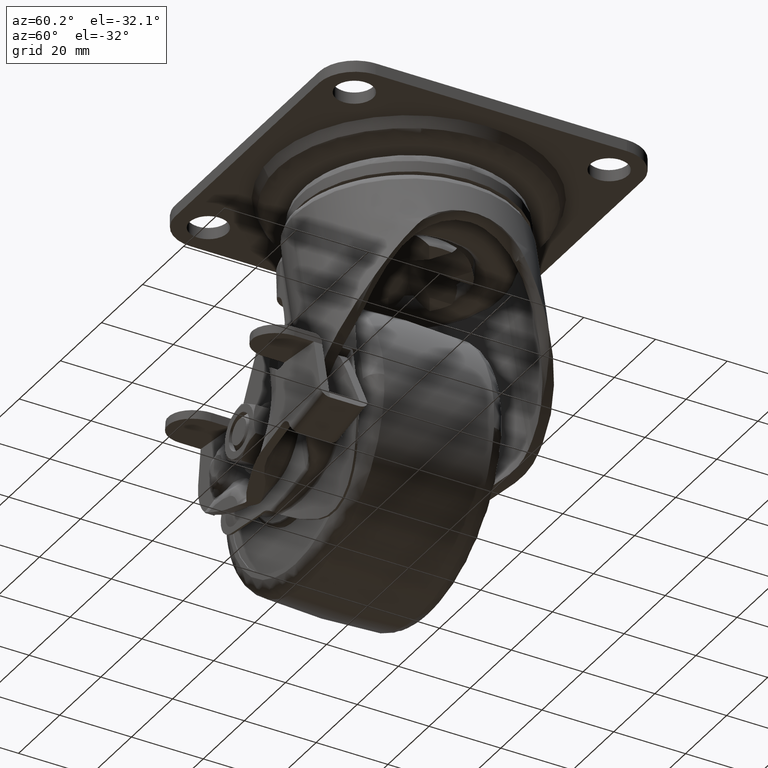
[diagram: clean part render]
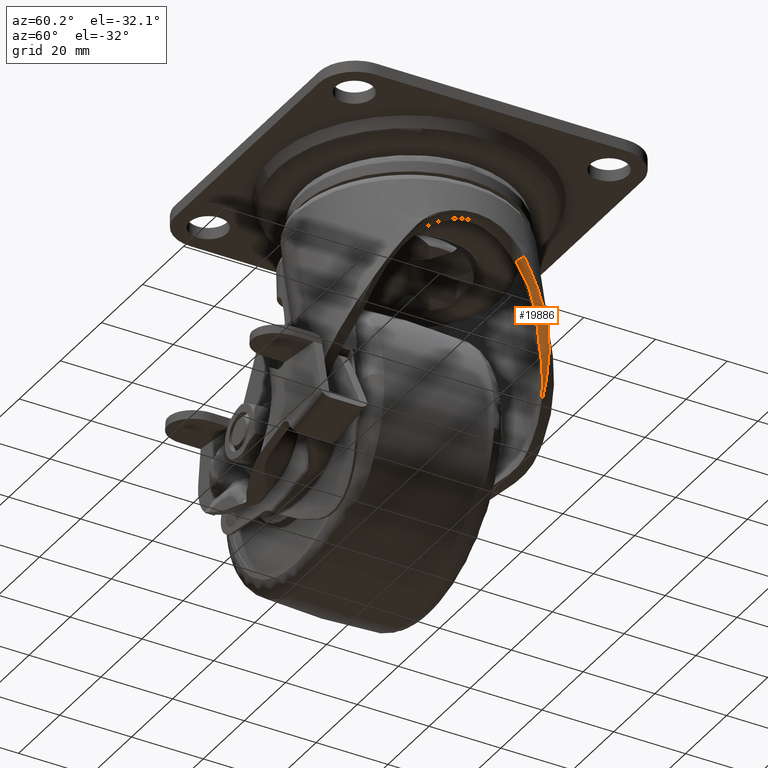
[diagram: same view with one face highlighted and labeled with its STEP entity id]
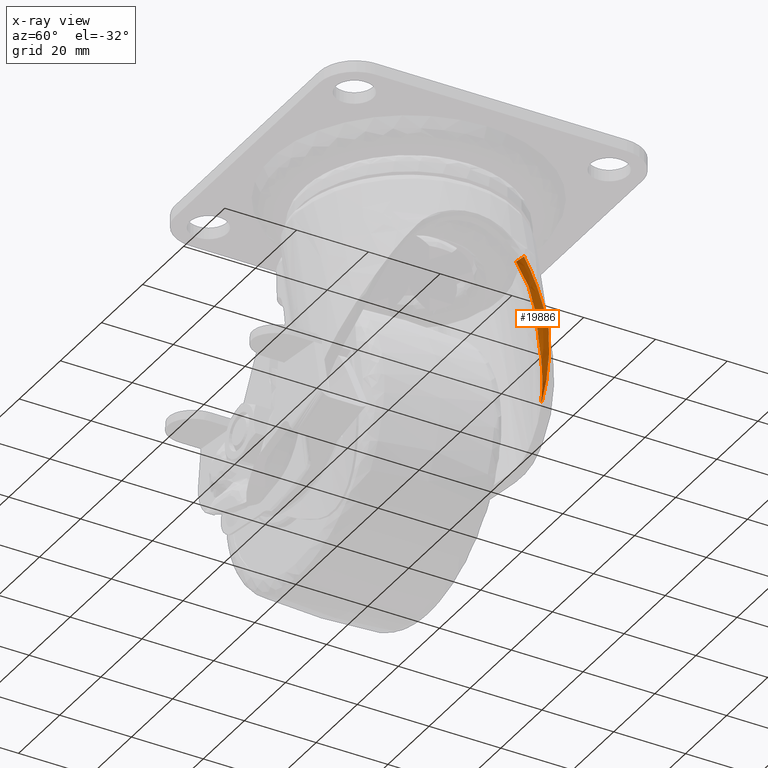
[diagram: x-ray of the same camera — body ghosted, the highlighted face saturated]
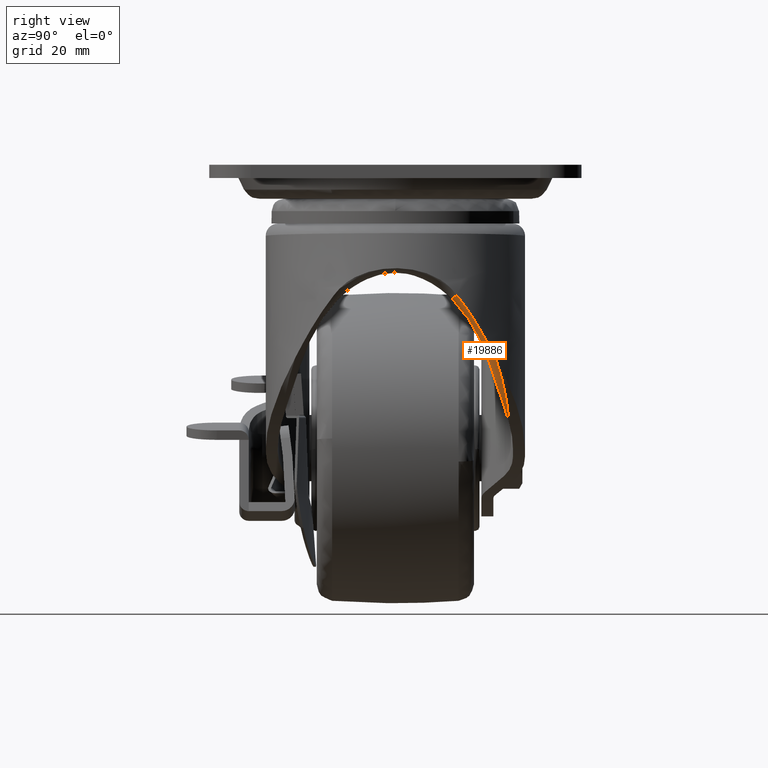
[diagram: same view with one face highlighted and labeled with its STEP entity id]
A machine part, auxiliary view. The second image highlights one B-rep face of the part: STEP entity #19886.
The next image is the same camera in x-ray: the body ghosted, the highlighted face saturated — about 0% of this face is hidden behind the body in this view.
A second angle (right view) of the same face is appended — the face is thin or edge-on in the first view.
In plain terms, the highlighted face is a freeform B-spline surface patch.
Its self-contained STEP definition (entity closure, byte-faithful):
#17883=CARTESIAN_POINT('',(30.167933935313851,14.834970166938099,-31.474647502570608));
#17884=VERTEX_POINT('',#17883);
#17892=CARTESIAN_POINT('',(25.820157492246000,24.150369751836951,-46.517935497095799));
#17893=VERTEX_POINT('',#17892);
#17894=CARTESIAN_POINT('',(30.167933935313851,14.834970166938099,-31.474647502570608));
#17895=CARTESIAN_POINT('',(30.109935720879569,15.065543439244040,-31.773286887646101));
#17896=CARTESIAN_POINT('',(30.049137989632861,15.294500020893720,-32.072506787586633));
#17897=CARTESIAN_POINT('',(29.922956261496200,15.747969803356280,-32.673221268123037));
#17898=CARTESIAN_POINT('',(29.857563633526951,15.972498480744830,-32.974702549387892));
#17899=CARTESIAN_POINT('',(29.722776302398671,16.416592574578171,-33.580450834324857));
#17900=CARTESIAN_POINT('',(29.653377981312410,16.636164706817748,-33.884712094814169));
#17901=CARTESIAN_POINT('',(29.510936808854950,17.070150565552421,-34.496242376435447));
#17902=CARTESIAN_POINT('',(29.437869553479239,17.284627551738009,-34.803599327372467));
#17903=CARTESIAN_POINT('',(29.213841566824410,17.919379145085468,-35.728867278242468));
#17904=CARTESIAN_POINT('',(29.058025008683501,18.331210771652671,-36.350384063865363));
#17905=CARTESIAN_POINT('',(28.733763504414661,19.133878161103759,-37.601868091195229));
#17906=CARTESIAN_POINT('',(28.565313283105869,19.524735844707269,-38.231820827189161));
#17907=CARTESIAN_POINT('',(28.214376040451839,20.288150321827288,-39.498159463282413));
#17908=CARTESIAN_POINT('',(28.031888983760378,20.660719576304029,-40.134538029820789));
#17909=CARTESIAN_POINT('',(27.649843858883550,21.390720674211650,-41.410935201796377));
#17910=CARTESIAN_POINT('',(27.450286684259630,21.748163163549780,-42.050947826260042));
#17911=CARTESIAN_POINT('',(27.029419476084179,22.451215589885450,-43.331229668439072));
#17912=CARTESIAN_POINT('',(26.808114824406100,22.796833680288358,-43.971495751663781));
#17913=CARTESIAN_POINT('',(26.337350602661150,23.479394263586880,-45.248458399500592));
#17914=CARTESIAN_POINT('',(26.087914594759390,23.816337175657090,-45.885161971596943));
#17915=CARTESIAN_POINT('',(25.820157492246199,24.150369751836649,-46.517935497095500));
#17916=B_SPLINE_CURVE_WITH_KNOTS('',3,(#17894,#17895,#17896,#17897,#17898,#17899,#17900,#17901,#17902,#17903,#17904,#17905,#17906,#17907,#17908,#17909,#17910,#17911,#17912,#17913,#17914,#17915),.UNSPECIFIED.,.F.,.U.,(4,2,2,2,2,2,2,2,2,2,4),(0.0,0.062500000000000,0.125000000000001,0.187500000000001,0.250000000000001,0.375000000000001,0.500000000000001,0.625000000000001,0.750000000000000,0.875000000000000,1.0),.UNSPECIFIED.);
#17917=EDGE_CURVE('',#17884,#17893,#17916,.T.);
#19061=CARTESIAN_POINT('',(16.365325057381000,27.521977061377449,-62.353091716818412));
#19062=VERTEX_POINT('',#19061);
#19063=CARTESIAN_POINT('',(25.820157492246000,24.150369751836951,-46.517935497095799));
#19064=CARTESIAN_POINT('',(25.527678217133150,24.396649012538951,-47.209133378725603));
#19065=CARTESIAN_POINT('',(25.221973735292220,24.627104798513269,-47.899248050485077));
#19066=CARTESIAN_POINT('',(24.743225636630459,24.950970349932550,-48.932024780131421));
#19067=CARTESIAN_POINT('',(24.580277328097811,25.055285492860779,-49.275885470043967));
#19068=CARTESIAN_POINT('',(24.247585506495419,25.256915694036870,-49.962692188735652));
#19069=CARTESIAN_POINT('',(24.077713813352990,25.354298508793860,-50.305889379500762));
#19070=CARTESIAN_POINT('',(23.212899721333841,25.823449999040879,-52.015964697901403));
#19071=CARTESIAN_POINT('',(22.472669309514931,26.141768702911300,-53.363247217262270));
#19072=CARTESIAN_POINT('',(20.895322834203242,26.683410727352239,-56.012764093331221));
#19073=CARTESIAN_POINT('',(20.058210107283589,26.906655335867889,-57.315014712439464));
#19074=CARTESIAN_POINT('',(18.285911188052779,27.272236565933071,-59.871178693821612));
#19075=CARTESIAN_POINT('',(17.350729914750360,27.414525933715900,-61.125103687843662));
#19076=CARTESIAN_POINT('',(16.365325057381000,27.521977061377449,-62.353091716818412));
#19077=B_SPLINE_CURVE_WITH_KNOTS('',3,(#19063,#19064,#19065,#19066,#19067,#19068,#19069,#19070,#19071,#19072,#19073,#19074,#19075,#19076),.UNSPECIFIED.,.F.,.U.,(4,2,2,2,2,2,4),(0.0,0.124999999999999,0.187499999999999,0.249999999999999,0.499999999999999,0.750000000000000,1.0),.UNSPECIFIED.);
#19078=EDGE_CURVE('',#17893,#19062,#19077,.T.);
#19308=CARTESIAN_POINT('',(28.263598361758952,13.670952050446241,-32.333734024903947));
#19309=VERTEX_POINT('',#19308);
#19348=CARTESIAN_POINT('',(22.929484430869401,23.044724296834101,-48.689486573704201));
#19349=VERTEX_POINT('',#19348);
#19405=CARTESIAN_POINT('',(22.929484430869401,23.044724296834101,-48.689486573704293));
#19406=CARTESIAN_POINT('',(23.630458315409921,22.590745831772079,-47.253443386201013));
#19407=CARTESIAN_POINT('',(24.264965406893111,22.069812576387701,-45.814565116400622));
#19408=CARTESIAN_POINT('',(24.979091223307108,21.318480261793560,-44.020477725476681));
#19409=CARTESIAN_POINT('',(25.117962794928470,21.163177816891942,-43.661895009282453));
#19410=CARTESIAN_POINT('',(25.320407634080489,20.922265797665251,-43.124557017183513));
#19411=CARTESIAN_POINT('',(25.386947173825600,20.840588526813931,-42.945436230089150));
#19412=CARTESIAN_POINT('',(25.517790443950641,20.674885102062550,-42.588213295069998));
#19413=CARTESIAN_POINT('',(25.582120210704201,20.590830762003080,-42.410044840874853));
#19414=CARTESIAN_POINT('',(25.898386923619441,20.164435961117132,-41.521508834613833));
#19415=CARTESIAN_POINT('',(26.134181338692340,19.803757572527971,-40.818041461212552));
#19416=CARTESIAN_POINT('',(26.573241898899369,19.039988907760090,-39.428441417255328));
#19417=CARTESIAN_POINT('',(26.776506527593249,18.636909345587739,-38.742301580879221));
#19418=CARTESIAN_POINT('',(27.152341720335290,17.784102041303861,-37.390543429070547));
#19419=CARTESIAN_POINT('',(27.324910678585631,17.334391406271319,-36.724913905436793));
#19420=CARTESIAN_POINT('',(27.641162788286149,16.382717277500362,-35.418215532116008));
#19421=CARTESIAN_POINT('',(27.784844137119439,15.880782695680560,-34.777128000841323));
#19422=CARTESIAN_POINT('',(27.947537826665609,15.215932724099890,-33.994446347377462));
#19423=CARTESIAN_POINT('',(27.979240413901419,15.081036655905020,-33.838797931769932));
#19424=CARTESIAN_POINT('',(28.040820468981039,14.808098050502460,-33.530317419849617));
#19425=CARTESIAN_POINT('',(28.070719227053711,14.669972507409289,-33.377385199963221));
#19426=CARTESIAN_POINT('',(28.157813003494571,14.250480722686291,-32.922657906495637));
#19427=CARTESIAN_POINT('',(28.212368700713039,13.964174664332500,-32.625117423837857));
#19428=CARTESIAN_POINT('',(28.263598361758952,13.670952050446241,-32.333734024903997));
#19429=B_SPLINE_CURVE_WITH_KNOTS('',3,(#19405,#19406,#19407,#19408,#19409,#19410,#19411,#19412,#19413,#19414,#19415,#19416,#19417,#19418,#19419,#19420,#19421,#19422,#19423,#19424,#19425,#19426,#19427,#19428),.UNSPECIFIED.,.F.,.U.,(4,2,2,2,2,2,2,2,2,2,2,4),(0.0,0.250000000000005,0.312500000000006,0.343750000000006,0.375000000000007,0.500000000000006,0.625000000000004,0.750000000000003,0.875000000000002,0.906250000000002,0.937500000000001,1.0),.UNSPECIFIED.);
#19430=EDGE_CURVE('',#19349,#19309,#19429,.T.);
#19775=CARTESIAN_POINT('',(16.224560955726481,27.537053342650850,-62.527908370332497));
#19776=CARTESIAN_POINT('',(18.195967218714639,27.329707037237089,-60.087966027954437));
#19777=CARTESIAN_POINT('',(19.972455873133210,26.986269182677390,-57.540173547657083));
#19778=CARTESIAN_POINT('',(22.352281613708051,26.189328333265809,-53.575547718861102));
#19779=CARTESIAN_POINT('',(23.097940093675032,25.876411976549779,-52.230122330847969));
#19780=CARTESIAN_POINT('',(24.144745637541341,25.321610000042401,-50.178488361161023));
#19781=CARTESIAN_POINT('',(24.481163647344879,25.122582420144660,-49.489992864662348));
#19782=CARTESIAN_POINT('',(25.124668706515749,24.697068696912790,-48.114537060199552));
#19783=CARTESIAN_POINT('',(25.432466472696511,24.470223710802820,-47.426203105731027));
#19784=CARTESIAN_POINT('',(26.020834306285099,23.986171119439501,-46.049441766756601));
#19785=CARTESIAN_POINT('',(26.301403874656732,23.728967331208420,-45.361012723689569));
#19786=CARTESIAN_POINT('',(26.835947956341428,23.181585251457189,-43.985320137490973));
#19787=CARTESIAN_POINT('',(27.090272299373279,22.890957103775420,-43.297049722702347));
#19788=CARTESIAN_POINT('',(27.811929090222829,21.967857356434880,-41.242833603884812));
#19789=CARTESIAN_POINT('',(28.233855554402460,21.290085437116499,-39.899539013928333));
#19790=CARTESIAN_POINT('',(28.972516744680849,19.792147345964182,-37.280645003252999));
#19791=CARTESIAN_POINT('',(29.289219721464079,18.972181688206010,-36.004902625779550));
#19792=CARTESIAN_POINT('',(29.694806773135120,17.614690708554718,-34.158478117737708));
#19793=CARTESIAN_POINT('',(29.818423356660599,17.140840964868222,-33.554265336441148));
#19794=CARTESIAN_POINT('',(30.044103249905540,16.145271952925189,-32.372254045119483));
#19795=CARTESIAN_POINT('',(30.146420038589419,15.621411847680021,-31.792551269810289));
#19796=CARTESIAN_POINT('',(30.237238551539939,15.080709412730410,-31.238720657157440));
#19797=CARTESIAN_POINT('',(16.143684308601358,25.648262017323358,-62.628006640047374));
#19798=CARTESIAN_POINT('',(18.084942044559764,25.481511793993089,-60.234957383200054));
#19799=CARTESIAN_POINT('',(19.833739977839965,25.175747824493246,-57.743124430943368));
#19800=CARTESIAN_POINT('',(22.178453564827905,24.434716190762902,-53.879203403667020));
#19801=CARTESIAN_POINT('',(22.913484698798140,24.140353442201558,-52.570155739943125));
#19802=CARTESIAN_POINT('',(23.946344214847866,23.614091999394663,-50.578075609264125));
#19803=CARTESIAN_POINT('',(24.278454976529407,23.424687328714260,-49.910242154195259));
#19804=CARTESIAN_POINT('',(24.914139696067508,23.018686213327435,-48.577560029705673));
#19805=CARTESIAN_POINT('',(25.218414718572408,22.801749488471948,-47.911376897137288));
#19806=CARTESIAN_POINT('',(25.800557447438479,22.338044586684056,-46.580582614954899));
#19807=CARTESIAN_POINT('',(26.078424607836013,22.091279516928640,-45.915969628053553));
#19808=CARTESIAN_POINT('',(26.608433282986383,21.565593571604158,-44.589745957324375));
#19809=CARTESIAN_POINT('',(26.860922668818400,21.286239285078153,-43.927167496715732));
#19810=CARTESIAN_POINT('',(27.578472427729142,20.398635188272522,-41.952839135869695));
#19811=CARTESIAN_POINT('',(27.999544229246471,19.746487002399668,-40.666061105883976));
#19812=CARTESIAN_POINT('',(28.740380751785423,18.307494955386506,-38.167893413413481));
#19813=CARTESIAN_POINT('',(29.060117390133591,17.520797256919018,-36.956379796945868));
#19814=CARTESIAN_POINT('',(29.473226454956261,16.223654166828066,-35.212969373410921));
#19815=CARTESIAN_POINT('',(29.599845071227232,15.771685717716240,-34.644205415526038));
#19816=CARTESIAN_POINT('',(29.832507145152498,14.824613423998201,-33.535376829219629));
#19817=CARTESIAN_POINT('',(29.938825590693291,14.327486638869853,-32.993550844329924));
#19818=CARTESIAN_POINT('',(30.034021761833174,13.816108379807707,-32.477979873017517));
#19819=CARTESIAN_POINT('',(14.668891667122370,25.544681957852539,-61.445487632926543));
#19820=CARTESIAN_POINT('',(16.581459500371171,25.343617160329899,-59.150036694318082));
#19821=CARTESIAN_POINT('',(18.304994173360761,25.010580636183199,-56.754363093551767));
#19822=CARTESIAN_POINT('',(20.613834343632771,24.239564271669380,-53.033116706387887));
#19823=CARTESIAN_POINT('',(21.337251282361869,23.937037220252851,-51.771370093842762));
#19824=CARTESIAN_POINT('',(22.352832654166210,23.401457134391269,-49.849893871073689));
#19825=CARTESIAN_POINT('',(22.679215969455530,23.209442407797781,-49.205502262459738));
#19826=CARTESIAN_POINT('',(23.303526525130259,22.799267779351752,-47.919177662951697));
#19827=CARTESIAN_POINT('',(23.602143282927528,22.580760977538478,-47.275957723364158));
#19828=CARTESIAN_POINT('',(24.172961249205329,22.114966086161711,-45.990642811703722));
#19829=CARTESIAN_POINT('',(24.445161973339751,21.867681108896232,-45.348546139054903));
#19830=CARTESIAN_POINT('',(24.963761645432051,21.342031428591110,-44.066876966504957));
#19831=CARTESIAN_POINT('',(25.210499988217030,21.063235081714371,-43.426368720831327));
#19832=CARTESIAN_POINT('',(25.910631161618362,20.178959369956079,-41.517245722374007));
#19833=CARTESIAN_POINT('',(26.319972380280308,19.531211011943089,-40.272226834115251));
#19834=CARTESIAN_POINT('',(27.036600745150981,18.105279790287540,-37.853586180029147));
#19835=CARTESIAN_POINT('',(27.343857088216868,17.327252021082870,-36.679845960705023));
#19836=CARTESIAN_POINT('',(27.737346267687421,16.046141379007690,-34.989288429057048));
#19837=CARTESIAN_POINT('',(27.857275608973719,15.600019869769261,-34.437502860740771));
#19838=CARTESIAN_POINT('',(28.076223910361961,14.665574009097901,-33.361153859875969));
#19839=CARTESIAN_POINT('',(28.175489859650881,14.175257658593161,-32.834876417217032));
#19840=CARTESIAN_POINT('',(28.263598361758959,13.670952050446230,-32.333734024903947));
#19848=(BOUNDED_SURFACE()B_SPLINE_SURFACE(3,2,((#19775,#19797,#19819),(#19776,#19798,#19820),(#19777,#19799,#19821),(#19778,#19800,#19822),(#19779,#19801,#19823),(#19780,#19802,#19824),(#19781,#19803,#19825),(#19782,#19804,#19826),(#19783,#19805,#19827),(#19784,#19806,#19828),(#19785,#19807,#19829),(#19786,#19808,#19830),(#19787,#19809,#19831),(#19788,#19810,#19832),(#19789,#19811,#19833),(#19790,#19812,#19834),(#19791,#19813,#19835),(#19792,#19814,#19836),(#19793,#19815,#19837),(#19794,#19816,#19838),(#19795,#19817,#19839),(#19796,#19818,#19840)),.UNSPECIFIED.,.F.,.F.,.U.)B_SPLINE_SURFACE_WITH_KNOTS((4,2,2,2,2,2,2,2,2,2,4),(3,3),(0.0,9.484365085143782,14.226547627715670,16.597638899001620,18.968730170287561,21.339821441573509,23.710912712859461,28.453095255431361,33.195277798003247,35.566369069289188,37.937460340575143),(0.0,3.185865791635787),.UNSPECIFIED.)GEOMETRIC_REPRESENTATION_ITEM()RATIONAL_B_SPLINE_SURFACE(((1.0,0.726236646898086,1.0),(1.0,0.732894679324574,1.0),(1.0,0.738576371390149,1.0),(1.0,0.745372724326410,1.0),(1.0,0.747350225833500,1.0),(1.0,0.749838700194584,1.0),(1.0,0.750586809045369,1.0),(1.0,0.751904727503169,1.0),(1.0,0.752476269993923,1.0),(1.0,0.753440203128662,1.0),(1.0,0.753832597424141,1.0),(1.0,0.754432808688358,1.0),(1.0,0.754640773018096,1.0),(1.0,0.754976873440374,1.0),(1.0,0.754816342282705,1.0),(1.0,0.753736240577321,1.0),(1.0,0.752815724627195,1.0),(1.0,0.750879739421641,1.0),(1.0,0.750142017444013,1.0),(1.0,0.748488871630356,1.0),(1.0,0.747569680833413,1.0),(1.0,0.746586996991280,1.0)))REPRESENTATION_ITEM('')SURFACE());
#19849=CARTESIAN_POINT('',(16.365325057381000,27.521977061377449,-62.353091716818412));
#19850=CARTESIAN_POINT('',(16.776174255385509,27.386923463858551,-61.841101246007980));
#19851=CARTESIAN_POINT('',(17.172375996385089,27.239697399075091,-61.322181184114982));
#19852=CARTESIAN_POINT('',(17.932981141707749,26.924693146761161,-60.267552029868249));
#19853=CARTESIAN_POINT('',(18.297402317134381,26.756910636891529,-59.731818023552613));
#19854=CARTESIAN_POINT('',(18.992664109433569,26.404619003140340,-58.641297075334613));
#19855=CARTESIAN_POINT('',(19.320954482610489,26.221422774606900,-58.090515437864397));
#19856=CARTESIAN_POINT('',(19.939483325329419,25.845103087117909,-56.976760807433571));
#19857=CARTESIAN_POINT('',(20.229730004564288,25.651979406417681,-56.413791240922919));
#19858=CARTESIAN_POINT('',(21.045260666918590,25.063168809973359,-54.705522064724377));
#19859=CARTESIAN_POINT('',(21.515329627930349,24.658227132486520,-53.540797425032061));
#19860=CARTESIAN_POINT('',(22.119805346513989,24.049813482971341,-51.752964624908472));
#19861=CARTESIAN_POINT('',(22.304564373488699,23.846773407621800,-51.150268197184843));
#19862=CARTESIAN_POINT('',(22.641633584078079,23.443027017247491,-49.930841384349193));
#19863=CARTESIAN_POINT('',(22.794088840668849,23.242217461980889,-49.314205004673902));
#19864=CARTESIAN_POINT('',(22.929484430869351,23.044724296834051,-48.689486573704201));
#19865=B_SPLINE_CURVE_WITH_KNOTS('',3,(#19849,#19850,#19851,#19852,#19853,#19854,#19855,#19856,#19857,#19858,#19859,#19860,#19861,#19862,#19863,#19864),.UNSPECIFIED.,.F.,.U.,(4,2,2,2,2,2,2,4),(0.0,0.125000000000000,0.250000000000000,0.375000000000000,0.500000000000000,0.750000000000001,0.875000000000000,1.0),.UNSPECIFIED.);
#19866=EDGE_CURVE('',#19062,#19349,#19865,.T.);
#19867=ORIENTED_EDGE('',*,*,#19866,.F.);
#19868=ORIENTED_EDGE('',*,*,#19078,.F.);
#19869=ORIENTED_EDGE('',*,*,#17917,.F.);
#19870=CARTESIAN_POINT('',(30.167933935313851,14.834970166938099,-31.474647502570608));
#19871=CARTESIAN_POINT('',(29.745494081263040,13.792452727421056,-32.454472528974144));
#19872=CARTESIAN_POINT('',(28.263598269237249,13.670952618224501,-32.333734589120930));
#19880=(BOUNDED_CURVE()B_SPLINE_CURVE(2,(#19870,#19871,#19872),.UNSPECIFIED.,.F.,.U.)CURVE()GEOMETRIC_REPRESENTATION_ITEM()QUASI_UNIFORM_CURVE()RATIONAL_B_SPLINE_CURVE((1.0,0.801581952022996,1.0))REPRESENTATION_ITEM(''));
#19881=EDGE_CURVE('',#17884,#19309,#19880,.T.);
#19882=ORIENTED_EDGE('',*,*,#19881,.T.);
#19883=ORIENTED_EDGE('',*,*,#19430,.F.);
#19884=EDGE_LOOP('',(#19867,#19868,#19869,#19882,#19883));
#19885=FACE_OUTER_BOUND('',#19884,.T.);
#19886=ADVANCED_FACE('',(#19885),#19848,.T.);